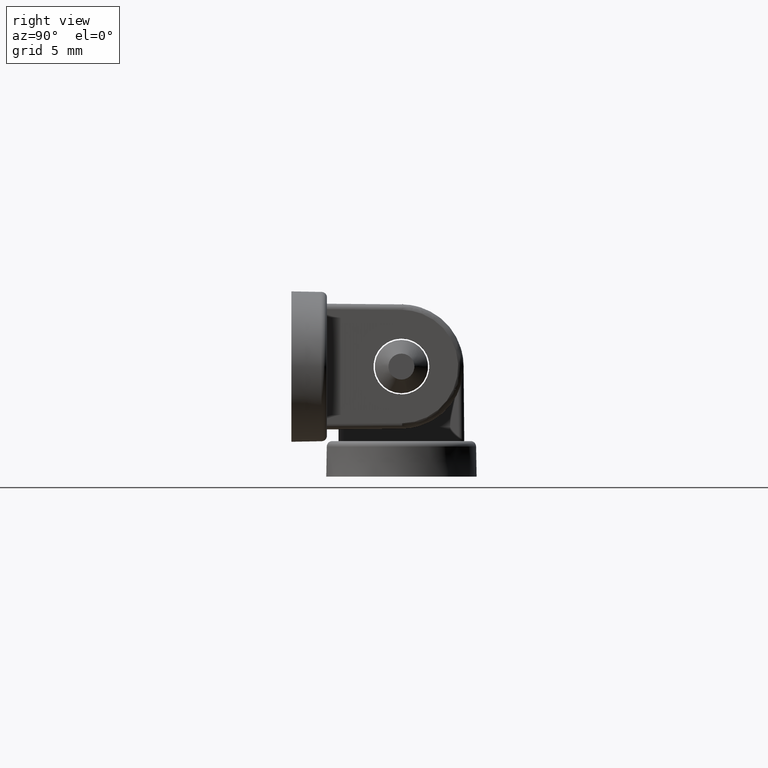
[diagram: clean part render]
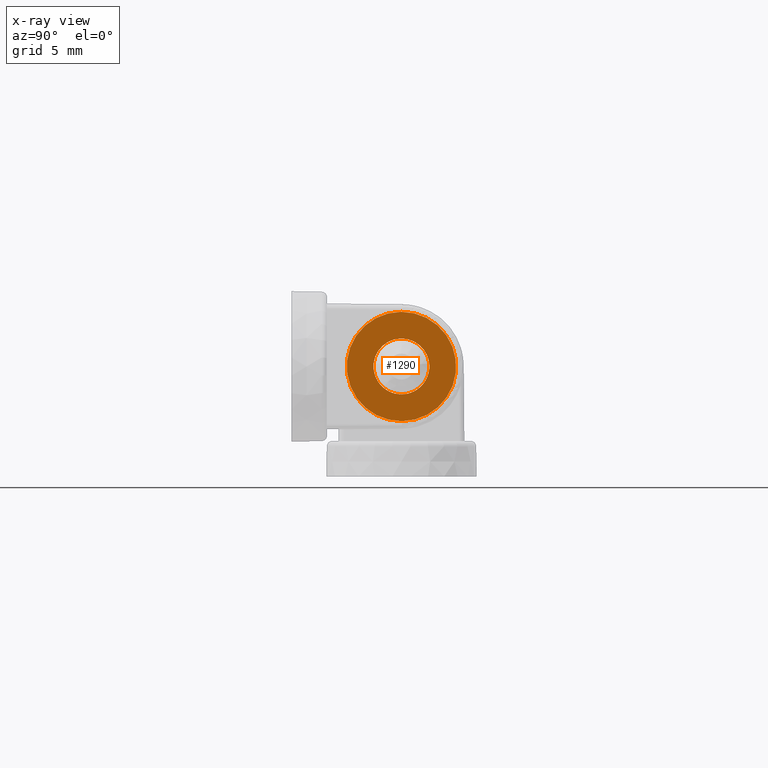
[diagram: x-ray — body ghosted, one internal face saturated and labeled with its STEP entity id]
A machine part, right view, then the same camera in x-ray: the body is ghosted and one INTERNAL B-rep face — a face not visible from any outside direction — is saturated and labeled: STEP entity #1290.
In plain terms, the highlighted planar face has unit normal (-1, 0, -0).
Its self-contained STEP definition (entity closure, byte-faithful):
#246=PLANE('',#1455);
#280=FACE_BOUND('',#473,.T.);
#360=FACE_OUTER_BOUND('',#472,.T.);
#472=EDGE_LOOP('',(#1163));
#473=EDGE_LOOP('',(#1164));
#554=CIRCLE('',#1456,4.);
#555=CIRCLE('',#1457,2.05);
#669=VERTEX_POINT('',#3134);
#670=VERTEX_POINT('',#3136);
#836=EDGE_CURVE('',#669,#669,#554,.T.);
#837=EDGE_CURVE('',#670,#670,#555,.T.);
#1163=ORIENTED_EDGE('',*,*,#836,.T.);
#1164=ORIENTED_EDGE('',*,*,#837,.T.);
#1290=ADVANCED_FACE('',(#360,#280),#246,.F.);
#1455=AXIS2_PLACEMENT_3D('',#3133,#1854,#1855);
#1456=AXIS2_PLACEMENT_3D('',#3135,#1856,#1857);
#1457=AXIS2_PLACEMENT_3D('',#3137,#1858,#1859);
#1854=DIRECTION('center_axis',(1.,0.,0.));
#1855=DIRECTION('ref_axis',(0.,0.,-1.));
#1856=DIRECTION('center_axis',(-1.,0.,0.));
#1857=DIRECTION('ref_axis',(0.,0.,-1.));
#1858=DIRECTION('center_axis',(1.,0.,0.));
#1859=DIRECTION('ref_axis',(0.,0.,-1.));
#3133=CARTESIAN_POINT('Origin',(-0.8,8.05000000000208,-1.24955601421561E-12));
#3134=CARTESIAN_POINT('',(-0.8,8.05000000000208,3.99999999999875));
#3135=CARTESIAN_POINT('Origin',(-0.8,8.05000000000208,-1.24980599142082E-12));
#3136=CARTESIAN_POINT('',(-0.8,8.05000000000208,2.04999999999875));
#3137=CARTESIAN_POINT('Origin',(-0.8,8.05000000000208,-1.24980599142082E-12));